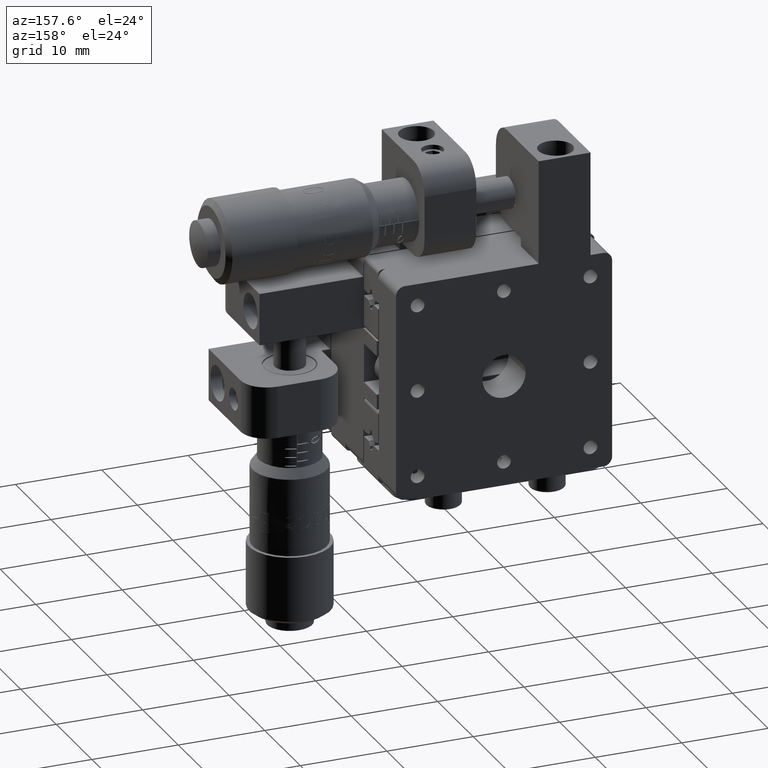
[diagram: clean part render]
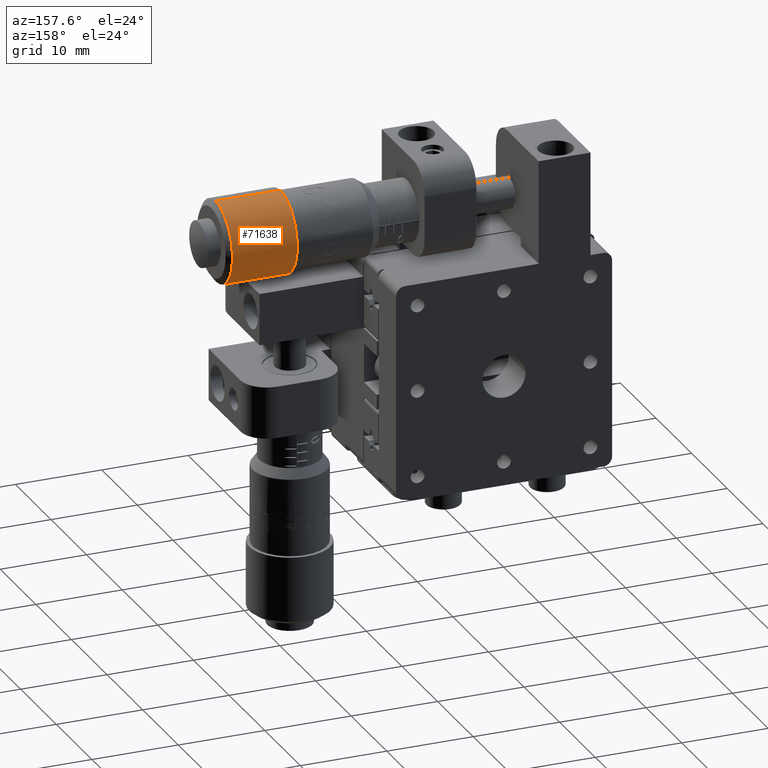
[diagram: same view with one face highlighted and labeled with its STEP entity id]
A machine part, auxiliary view. The second image highlights one B-rep face of the part: STEP entity #71638.
In plain terms, the highlighted cylindrical surface (partial cylindrical patch) has radius 4.7 mm, axis along (1, 0, 0).
Its self-contained STEP definition (entity closure, byte-faithful):
#3976 = DIRECTION ( 'NONE',  ( 1.000000000000000000, 2.449293598294716800E-016, 1.198260150553025500E-016 ) ) ;
#5744 = EDGE_CURVE ( 'NONE', #56057, #51104, #50911, .T. ) ;
#10031 = DIRECTION ( 'NONE',  ( 1.000000000000000000, 2.449293598294716800E-016, 1.198260150553025500E-016 ) ) ;
#19299 = CARTESIAN_POINT ( 'NONE',  ( 30.40000000000006300, 7.199999999999987700, 18.00000000000002800 ) ) ;
#20897 = CYLINDRICAL_SURFACE ( 'NONE', #74425, 4.700000000000003700 ) ;
#31077 = CARTESIAN_POINT ( 'NONE',  ( 30.40000000000006300, 7.126313350042746500, 22.69942233445966900 ) ) ;
#31441 = EDGE_CURVE ( 'NONE', #43851, #96437, #82178, .T. ) ;
#31632 = VECTOR ( 'NONE', #3976, 1000.000000000000000 ) ;
#35664 = EDGE_CURVE ( 'NONE', #56057, #43851, #85256, .T. ) ;
#36527 = ORIENTED_EDGE ( 'NONE', *, *, #35664, .F. ) ;
#39640 = CARTESIAN_POINT ( 'NONE',  ( 66.94102306920758800, 7.273686649957233500, 13.30057766554042500 ) ) ;
#40797 = CARTESIAN_POINT ( 'NONE',  ( 66.94102306920758800, 7.199999999999994000, 18.00000000000006800 ) ) ;
#40977 = LINE ( 'NONE', #49132, #31632 ) ;
#41726 = DIRECTION ( 'NONE',  ( 0.0000000000000000000, 0.01567801062919995200, -0.9998770924382209800 ) ) ;
#41899 = ORIENTED_EDGE ( 'NONE', *, *, #43781, .T. ) ;
#43781 = EDGE_CURVE ( 'NONE', #51104, #96437, #40977, .T. ) ;
#43851 = VERTEX_POINT ( 'NONE', #50685 ) ;
#45017 = ORIENTED_EDGE ( 'NONE', *, *, #31441, .F. ) ;
#47811 = EDGE_LOOP ( 'NONE', ( #67109, #41899, #45017, #36527 ) ) ;
#49132 = CARTESIAN_POINT ( 'NONE',  ( 66.94102306920758800, 7.126313350042754500, 22.69942233445971200 ) ) ;
#50685 = CARTESIAN_POINT ( 'NONE',  ( 30.40000000000006300, 7.273686649957227200, 13.30057766554038800 ) ) ;
#50911 = CIRCLE ( 'NONE', #66098, 4.700000000000003700 ) ;
#51104 = VERTEX_POINT ( 'NONE', #64593 ) ;
#52744 = VECTOR ( 'NONE', #10031, 1000.000000000000000 ) ;
#56057 = VERTEX_POINT ( 'NONE', #94759 ) ;
#60953 = AXIS2_PLACEMENT_3D ( 'NONE', #19299, #93057, #41726 ) ;
#64593 = CARTESIAN_POINT ( 'NONE',  ( 22.90000000000006300, 7.126313350042745600, 22.69942233445969700 ) ) ;
#66098 = AXIS2_PLACEMENT_3D ( 'NONE', #73661, #89299, #88952 ) ;
#67109 = ORIENTED_EDGE ( 'NONE', *, *, #5744, .T. ) ;
#69952 = DIRECTION ( 'NONE',  ( 0.0000000000000000000, 0.01567801062919995200, -0.9998770924382209800 ) ) ;
#71638 = ADVANCED_FACE ( 'NONE', ( #71991 ), #20897, .T. ) ;
#71991 = FACE_OUTER_BOUND ( 'NONE', #47811, .T. ) ;
#73661 = CARTESIAN_POINT ( 'NONE',  ( 22.90000000000006300, 7.199999999999983300, 18.00000000000005700 ) ) ;
#74425 = AXIS2_PLACEMENT_3D ( 'NONE', #40797, #93073, #69952 ) ;
#82178 = CIRCLE ( 'NONE', #60953, 4.700000000000003700 ) ;
#85256 = LINE ( 'NONE', #39640, #52744 ) ;
#88952 = DIRECTION ( 'NONE',  ( 0.0000000000000000000, 0.01567801062919995200, -0.9998770924382209800 ) ) ;
#89299 = DIRECTION ( 'NONE',  ( 1.000000000000000000, 2.449293598294716800E-016, 1.198260150553025500E-016 ) ) ;
#93057 = DIRECTION ( 'NONE',  ( 1.000000000000000000, 2.449293598294716800E-016, 1.198260150553025500E-016 ) ) ;
#93073 = DIRECTION ( 'NONE',  ( 1.000000000000000000, 2.449293598294716800E-016, 1.198260150553025500E-016 ) ) ;
#94759 = CARTESIAN_POINT ( 'NONE',  ( 22.90000000000006300, 7.273686649957222800, 13.30057766554041600 ) ) ;
#96437 = VERTEX_POINT ( 'NONE', #31077 ) ;